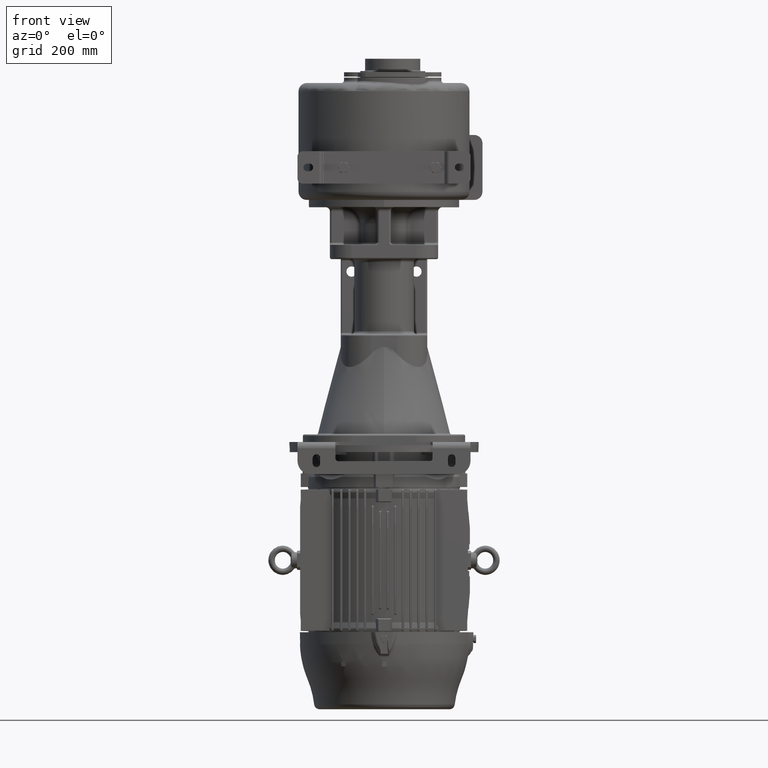
[diagram: clean part render]
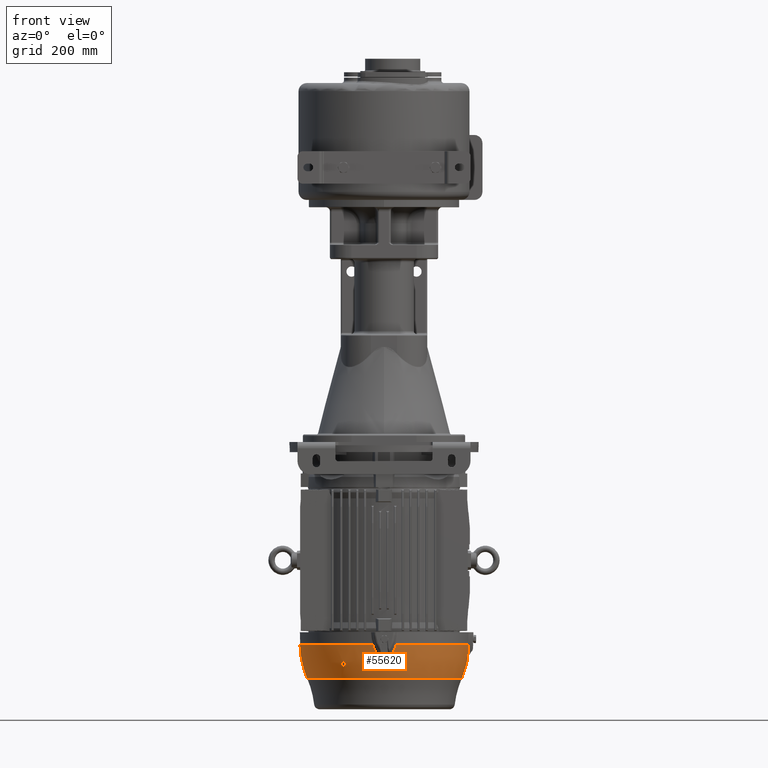
[diagram: same view with one face highlighted and labeled with its STEP entity id]
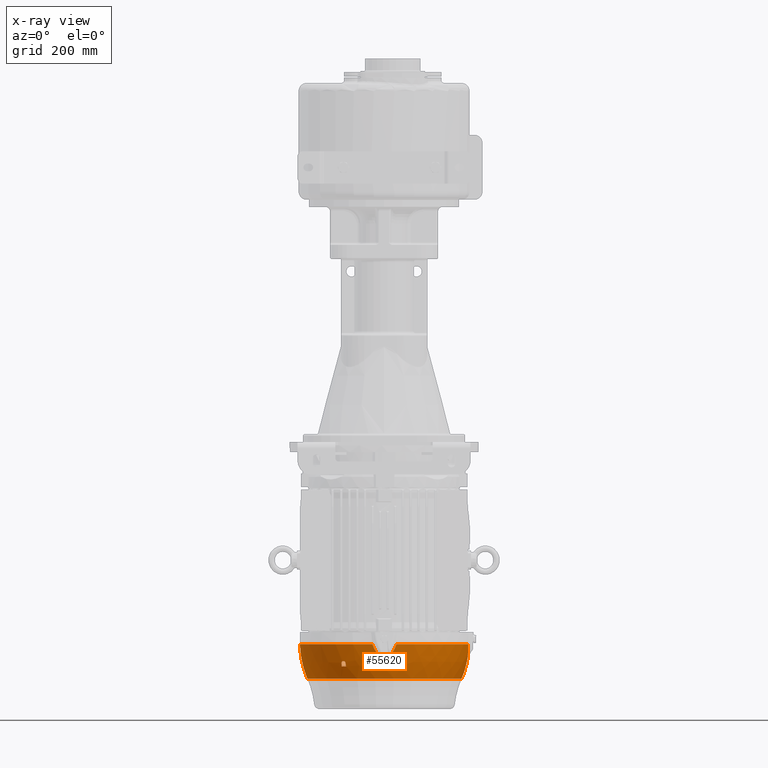
[diagram: x-ray of the same camera — body ghosted, the highlighted face saturated]
A machine part, front view. The second image highlights one B-rep face of the part: STEP entity #55620.
The next image is the same camera in x-ray: the body ghosted, the highlighted face saturated — about 0% of this face is hidden behind the body in this view.
In plain terms, the highlighted face is a freeform B-spline surface patch.
Its self-contained STEP definition (entity closure, byte-faithful):
#5027=CARTESIAN_POINT('',(-2.278002494873E1,1.58E2,-8.760608902496E2));
#5028=DIRECTION('',(0.E0,1.E0,0.E0));
#5029=DIRECTION('',(9.660341785750E-1,0.E0,-2.584143297591E-1));
#5030=AXIS2_PLACEMENT_3D('',#5027,#5028,#5029);
#5050=CARTESIAN_POINT('',(-2.278002494873E1,1.58E2,-8.760608902496E2));
#5051=DIRECTION('',(0.E0,1.E0,0.E0));
#5052=DIRECTION('',(9.877699480425E-1,0.E0,-1.559183431931E-1));
#5053=AXIS2_PLACEMENT_3D('',#5050,#5051,#5052);
#5180=CARTESIAN_POINT('',(8.634161712648E-1,1.58E2,-9.453489229696E2));
#5181=DIRECTION('',(0.E0,0.E0,-1.E0));
#5182=DIRECTION('',(1.E0,0.E0,0.E0));
#5183=AXIS2_PLACEMENT_3D('',#5180,#5181,#5182);
#5190=CARTESIAN_POINT('',(2.450685729126E1,1.58E2,-8.760608902496E2));
#5191=DIRECTION('',(0.E0,-1.E0,0.E0));
#5192=DIRECTION('',(-9.660341785750E-1,0.E0,-2.584143297591E-1));
#5193=AXIS2_PLACEMENT_3D('',#5190,#5191,#5192);
#5195=CARTESIAN_POINT('',(-1.493883468379E2,1.530036341085E2,
-9.222297882218E2));
#5196=CARTESIAN_POINT('',(-1.493874851336E2,1.532404753056E2,
-9.222626953797E2));
#5197=CARTESIAN_POINT('',(-1.493858848299E2,1.537145528284E2,
-9.223238085126E2));
#5198=CARTESIAN_POINT('',(-1.493838529399E2,1.544269444684E2,
-9.224014032616E2));
#5199=CARTESIAN_POINT('',(-1.493821901626E2,1.551403325301E2,
-9.224649021658E2));
#5200=CARTESIAN_POINT('',(-1.493808966422E2,1.558545381858E2,
-9.225142997141E2));
#5201=CARTESIAN_POINT('',(-1.493799725740E2,1.565693482623E2,
-9.225495884574E2));
#5202=CARTESIAN_POINT('',(-1.493794180795E2,1.572845832416E2,
-9.225707637471E2));
#5203=CARTESIAN_POINT('',(-1.493792948522E2,1.577615014652E2,
-9.225754696063E2));
#5204=CARTESIAN_POINT('',(-1.493792948522E2,1.58E2,-9.225754696063E2));
#5206=CARTESIAN_POINT('',(-1.508255728644E2,1.536047050255E2,
-9.165109804543E2));
#5207=CARTESIAN_POINT('',(-1.506764257704E2,1.535376458763E2,
-9.171490056400E2));
#5208=CARTESIAN_POINT('',(-1.503711006155E2,1.534037097429E2,
-9.184233228263E2));
#5209=CARTESIAN_POINT('',(-1.498919880581E2,1.532033373244E2,
-9.203297390430E2));
#5210=CARTESIAN_POINT('',(-1.495585668320E2,1.530701395024E2,
-9.215970316653E2));
#5211=CARTESIAN_POINT('',(-1.493883468379E2,1.530036341085E2,
-9.222297882218E2));
#5213=CARTESIAN_POINT('',(2.450685729126E1,1.58E2,-8.760608902496E2));
#5214=DIRECTION('',(0.E0,-1.E0,0.E0));
#5215=DIRECTION('',(-9.995335908367E-1,0.E0,-3.053851320982E-2));
#5216=AXIS2_PLACEMENT_3D('',#5213,#5214,#5215);
#5218=CARTESIAN_POINT('',(8.634161712648E-1,1.58E2,-8.815578226274E2));
#5219=DIRECTION('',(0.E0,0.E0,-1.E0));
#5220=DIRECTION('',(-1.422718546429E-1,-9.898276210414E-1,0.E0));
#5221=AXIS2_PLACEMENT_3D('',#5218,#5219,#5220);
#5223=CARTESIAN_POINT('',(-8.823866266802E0,4.180401288472E0,
-9.043206801506E2));
#5224=CARTESIAN_POINT('',(-9.460649160347E0,4.089389197458E0,
-9.034974989449E2));
#5225=CARTESIAN_POINT('',(-1.074177086642E1,3.916121498191E0,
-9.017771751398E2));
#5226=CARTESIAN_POINT('',(-1.319501114259E1,3.625262075587E0,
-8.982076194446E2));
#5227=CARTESIAN_POINT('',(-1.714565668305E1,3.270438710904E0,
-8.916735491059E2));
#5228=CARTESIAN_POINT('',(-1.986550244460E1,3.228869103125E0,
-8.857055073583E2));
#5229=CARTESIAN_POINT('',(-2.136977705618E1,3.317058907584E0,
-8.815578225722E2));
#5231=CARTESIAN_POINT('',(1.055069860930E1,4.180401288886E0,-9.043206801505E2));
#5232=CARTESIAN_POINT('',(8.964957968112E0,4.070374655334E0,-9.042569077911E2));
#5233=CARTESIAN_POINT('',(6.559558519117E0,3.944529907133E0,-9.041839681437E2));
#5234=CARTESIAN_POINT('',(3.325288999976E0,3.859261436943E0,-9.041345455199E2));
#5235=CARTESIAN_POINT('',(8.605489552481E-1,3.837620690501E0,
-9.041220024001E2));
#5236=CARTESIAN_POINT('',(-1.603819288343E0,3.859359643010E0,
-9.041346024410E2));
#5237=CARTESIAN_POINT('',(-4.836644592976E0,3.944706073388E0,
-9.041840702511E2));
#5238=CARTESIAN_POINT('',(-7.239940731019E0,4.070500543109E0,
-9.042569807570E2));
#5239=CARTESIAN_POINT('',(-8.823866266802E0,4.180401288472E0,
-9.043206801506E2));
#5241=CARTESIAN_POINT('',(8.634161712648E-1,1.58E2,-8.815578226274E2));
#5242=DIRECTION('',(0.E0,0.E0,-1.E0));
#5243=DIRECTION('',(9.898276210414E-1,-1.422718546429E-1,0.E0));
#5244=AXIS2_PLACEMENT_3D('',#5241,#5242,#5243);
#5246=CARTESIAN_POINT('',(1.546830149958E2,1.483127179889E2,-9.043206796097E2));
#5247=CARTESIAN_POINT('',(1.547740270869E2,1.476759350953E2,-9.034974984040E2));
#5248=CARTESIAN_POINT('',(1.549472946193E2,1.463948127593E2,-9.017771753971E2));
#5249=CARTESIAN_POINT('',(1.552381541270E2,1.439415728044E2,-8.982076192947E2));
#5250=CARTESIAN_POINT('',(1.555929774369E2,1.399909270570E2,-8.916735492183E2));
#5251=CARTESIAN_POINT('',(1.556345470681E2,1.372710813841E2,-8.857055073583E2));
#5252=CARTESIAN_POINT('',(1.555463572637E2,1.357668067726E2,-8.815578225722E2));
#5254=CARTESIAN_POINT('',(1.550185658162E2,1.58E2,-9.041261912805E2));
#5255=CARTESIAN_POINT('',(1.550185659074E2,1.571775467310E2,-9.041261912276E2));
#5256=CARTESIAN_POINT('',(1.550040809608E2,1.555336954460E2,-9.041345890883E2));
#5257=CARTESIAN_POINT('',(1.549187101666E2,1.522999401740E2,-9.041840700375E2));
#5258=CARTESIAN_POINT('',(1.547929156788E2,1.498966429230E2,-9.042569802522E2));
#5259=CARTESIAN_POINT('',(1.546830149958E2,1.483127179889E2,-9.043206796097E2));
#5261=CARTESIAN_POINT('',(1.511151791804E2,1.530036341085E2,-9.222297882218E2));
#5262=CARTESIAN_POINT('',(1.512853991745E2,1.530701395024E2,-9.215970316653E2));
#5263=CARTESIAN_POINT('',(1.516188204007E2,1.532033373244E2,-9.203297390430E2));
#5264=CARTESIAN_POINT('',(1.520979329580E2,1.534037097429E2,-9.184233228263E2));
#5265=CARTESIAN_POINT('',(1.524032581129E2,1.535376458763E2,-9.171490056400E2));
#5266=CARTESIAN_POINT('',(1.525524052069E2,1.536047050255E2,-9.165109804543E2));
#5268=CARTESIAN_POINT('',(1.511061271948E2,1.58E2,-9.225754696063E2));
#5269=CARTESIAN_POINT('',(1.511061271948E2,1.577615014652E2,-9.225754696063E2));
#5270=CARTESIAN_POINT('',(1.511062504220E2,1.572845832416E2,-9.225707637471E2));
#5271=CARTESIAN_POINT('',(1.511068049165E2,1.565693482623E2,-9.225495884574E2));
#5272=CARTESIAN_POINT('',(1.511077289848E2,1.558545381857E2,-9.225142997141E2));
#5273=CARTESIAN_POINT('',(1.511090225051E2,1.551403325301E2,-9.224649021658E2));
#5274=CARTESIAN_POINT('',(1.511106852824E2,1.544269444684E2,-9.224014032616E2));
#5275=CARTESIAN_POINT('',(1.511127171724E2,1.537145528284E2,-9.223238085126E2));
#5276=CARTESIAN_POINT('',(1.511143174761E2,1.532404753056E2,-9.222626953797E2));
#5277=CARTESIAN_POINT('',(1.511151791804E2,1.530036341085E2,-9.222297882218E2));
#5279=CARTESIAN_POINT('',(-7.858944534336E1,3.037634128522E1,
-9.222297999093E2));
#5280=CARTESIAN_POINT('',(-7.861696001258E1,3.019567369575E1,
-9.215970433696E2));
#5281=CARTESIAN_POINT('',(-7.866831755528E1,2.984032057686E1,
-9.203297335812E2));
#5282=CARTESIAN_POINT('',(-7.873434638179E1,2.932521193088E1,
-9.184233243869E2));
#5283=CARTESIAN_POINT('',(-7.877101683139E1,2.899382425492E1,
-9.171490056400E2));
#5284=CARTESIAN_POINT('',(-7.878751545159E1,2.883112950802E1,
-9.165109804543E2));
#5286=CARTESIAN_POINT('',(-6.993548424465E1,2.537997390078E1,
-9.222297962088E2));
#5287=CARTESIAN_POINT('',(-7.015591178888E1,2.550830936848E1,
-9.222652352184E2));
#5288=CARTESIAN_POINT('',(-7.059723187782E1,2.576508194508E1,
-9.223306484384E2));
#5289=CARTESIAN_POINT('',(-7.126069207443E1,2.615060543344E1,
-9.224124665816E2));
#5290=CARTESIAN_POINT('',(-7.192533648938E1,2.653631727612E1,
-9.224779290463E2));
#5291=CARTESIAN_POINT('',(-7.259096778357E1,2.692210459543E1,
-9.225270368165E2));
#5292=CARTESIAN_POINT('',(-7.325736136442E1,2.730783712459E1,
-9.225597791986E2));
#5293=CARTESIAN_POINT('',(-7.392429931719E1,2.769338899060E1,
-9.225761517942E2));
#5294=CARTESIAN_POINT('',(-7.459156145870E1,2.807863296814E1,
-9.225761517977E2));
#5295=CARTESIAN_POINT('',(-7.525892813912E1,2.846344223932E1,
-9.225597791912E2));
#5296=CARTESIAN_POINT('',(-7.592617908976E1,2.884768974646E1,
-9.225270368528E2));
#5297=CARTESIAN_POINT('',(-7.659309632846E1,2.923124965546E1,
-9.224779289302E2));
#5298=CARTESIAN_POINT('',(-7.725945480393E1,2.961399278677E1,
-9.224124670494E2));
#5299=CARTESIAN_POINT('',(-7.792505787067E1,2.999580397030E1,
-9.223306467498E2));
#5300=CARTESIAN_POINT('',(-7.836808980956E1,3.024961317381E1,
-9.222652389162E2));
#5301=CARTESIAN_POINT('',(-7.858944534336E1,3.037634128522E1,
-9.222297999093E2));
#5303=CARTESIAN_POINT('',(-7.117464124151E1,2.443583453353E1,
-9.165109804543E2));
#5304=CARTESIAN_POINT('',(-7.104199276773E1,2.453147013120E1,
-9.171490056400E2));
#5305=CARTESIAN_POINT('',(-7.077333792570E1,2.472892147684E1,
-9.184233238927E2));
#5306=CARTESIAN_POINT('',(-7.036025481010E1,2.504365859058E1,
-9.203297353105E2));
#5307=CARTESIAN_POINT('',(-7.007818962273E1,2.526581172097E1,
-9.215970396638E2));
#5308=CARTESIAN_POINT('',(-6.993548424465E1,2.537997390078E1,
-9.222297962088E2));
#5310=CARTESIAN_POINT('',(-4.132949720262E0,7.748236990866E0,
-9.222297882217E2));
#5311=CARTESIAN_POINT('',(-4.066444326289E0,7.578016996734E0,
-9.215970316653E2));
#5312=CARTESIAN_POINT('',(-3.933246504366E0,7.244595770587E0,
-9.203297390430E2));
#5313=CARTESIAN_POINT('',(-3.732874085804E0,6.765483213254E0,
-9.184233228263E2));
#5314=CARTESIAN_POINT('',(-3.598937952460E0,6.460158058356E0,
-9.171490056400E2));
#5315=CARTESIAN_POINT('',(-3.531878803231E0,6.311010964380E0,
-9.165109804543E2));
#5317=CARTESIAN_POINT('',(5.859782062791E0,7.748236990866E0,-9.222297882217E2));
#5318=CARTESIAN_POINT('',(5.604718358058E0,7.749164994452E0,-9.222652272489E2));
#5319=CARTESIAN_POINT('',(5.094139291541E0,7.750878204736E0,-9.223306521101E2));
#5320=CARTESIAN_POINT('',(4.326803250541E0,7.753020566474E0,-9.224124656041E2));
#5321=CARTESIAN_POINT('',(3.558348491332E0,7.754734794295E0,-9.224779293235E2));
#5322=CARTESIAN_POINT('',(2.789001157517E0,7.756020717651E0,-9.225270367552E2));
#5323=CARTESIAN_POINT('',(2.019021179615E0,7.756878109290E0,-9.225597792210E2));
#5324=CARTESIAN_POINT('',(1.248660106219E0,7.757306840131E0,-9.225761517912E2));
#5325=CARTESIAN_POINT('',(4.781722362237E-1,7.757306840130E0,
-9.225761517912E2));
#5326=CARTESIAN_POINT('',(-2.921888371711E-1,7.756878109290E0,
-9.225597792209E2));
#5327=CARTESIAN_POINT('',(-1.062168815069E0,7.756020717651E0,
-9.225270367552E2));
#5328=CARTESIAN_POINT('',(-1.831516148877E0,7.754734794294E0,
-9.224779293235E2));
#5329=CARTESIAN_POINT('',(-2.599970908073E0,7.753020566473E0,
-9.224124656041E2));
#5330=CARTESIAN_POINT('',(-3.367306949050E0,7.750878204736E0,
-9.223306521101E2));
#5331=CARTESIAN_POINT('',(-3.877886015543E0,7.749164994452E0,
-9.222652272489E2));
#5332=CARTESIAN_POINT('',(-4.132949720262E0,7.748236990866E0,
-9.222297882217E2));
#5334=CARTESIAN_POINT('',(5.258711145761E0,6.311010964380E0,-9.165109804543E2));
#5335=CARTESIAN_POINT('',(5.325770294990E0,6.460158058356E0,-9.171490056400E2));
#5336=CARTESIAN_POINT('',(5.459706428334E0,6.765483213254E0,-9.184233228263E2));
#5337=CARTESIAN_POINT('',(5.660078846895E0,7.244595770587E0,-9.203297390430E2));
#5338=CARTESIAN_POINT('',(5.793276668818E0,7.578016996734E0,-9.215970316653E2));
#5339=CARTESIAN_POINT('',(5.859782062791E0,7.748236990866E0,-9.222297882217E2));
#5349=CARTESIAN_POINT('',(-1.508255728644E2,1.536047050255E2,
-9.165109804543E2));
#5350=CARTESIAN_POINT('',(-1.508380031562E2,1.536102939027E2,
-9.164578058394E2));
#5351=CARTESIAN_POINT('',(-1.508628235497E2,1.536235033434E2,
-9.163516620752E2));
#5352=CARTESIAN_POINT('',(-1.508998856473E2,1.536493923026E2,
-9.161932668193E2));
#5353=CARTESIAN_POINT('',(-1.509367156725E2,1.536813163744E2,
-9.160359624647E2));
#5354=CARTESIAN_POINT('',(-1.509732472508E2,1.537192168781E2,
-9.158800309387E2));
#5355=CARTESIAN_POINT('',(-1.510094153359E2,1.537630188186E2,
-9.157257479809E2));
#5356=CARTESIAN_POINT('',(-1.510451634451E2,1.538126421347E2,
-9.155733523341E2));
#5357=CARTESIAN_POINT('',(-1.510804381722E2,1.538679999363E2,
-9.154230692480E2));
#5358=CARTESIAN_POINT('',(-1.511151858928E2,1.539289940738E2,
-9.152751245446E2));
#5359=CARTESIAN_POINT('',(-1.511493540265E2,1.539955165275E2,
-9.151297392534E2));
#5360=CARTESIAN_POINT('',(-1.511828917556E2,1.540674510696E2,
-9.149871265812E2));
#5361=CARTESIAN_POINT('',(-1.512157499016E2,1.541446736012E2,
-9.148474924682E2));
#5362=CARTESIAN_POINT('',(-1.512478807134E2,1.542270520023E2,
-9.147110365168E2));
#5363=CARTESIAN_POINT('',(-1.512792380930E2,1.543144469223E2,
-9.145779510620E2));
#5364=CARTESIAN_POINT('',(-1.513097776068E2,1.544067121600E2,
-9.144484211529E2));
#5365=CARTESIAN_POINT('',(-1.513394565794E2,1.545036952527E2,
-9.143226241826E2));
#5366=CARTESIAN_POINT('',(-1.513682341092E2,1.546052379651E2,
-9.142007298552E2));
#5367=CARTESIAN_POINT('',(-1.513960705529E2,1.547111745011E2,
-9.140829023924E2));
#5368=CARTESIAN_POINT('',(-1.514229287730E2,1.548213363369E2,
-9.139692952815E2));
#5369=CARTESIAN_POINT('',(-1.514487734412E2,1.549355504902E2,
-9.138600542562E2));
#5370=CARTESIAN_POINT('',(-1.514735710955E2,1.550536400618E2,
-9.137553170834E2));
#5371=CARTESIAN_POINT('',(-1.514972901466E2,1.551754247302E2,
-9.136552135633E2));
#5372=CARTESIAN_POINT('',(-1.515199008511E2,1.553007210620E2,
-9.135598656674E2));
#5373=CARTESIAN_POINT('',(-1.515413753302E2,1.554293430612E2,
-9.134693874851E2));
#5374=CARTESIAN_POINT('',(-1.515616874785E2,1.555611021750E2,
-9.133838856338E2));
#5375=CARTESIAN_POINT('',(-1.515808126974E2,1.556958055613E2,
-9.133034603996E2));
#5376=CARTESIAN_POINT('',(-1.515987286628E2,1.558332617974E2,
-9.132282025276E2));
#5377=CARTESIAN_POINT('',(-1.516154146702E2,1.559732773788E2,
-9.131581960040E2));
#5378=CARTESIAN_POINT('',(-1.516308517623E2,1.561156579825E2,
-9.130935175350E2));
#5379=CARTESIAN_POINT('',(-1.516450226388E2,1.562602083360E2,
-9.130342369449E2));
#5380=CARTESIAN_POINT('',(-1.516579116454E2,1.564067326317E2,
-9.129804172386E2));
#5381=CARTESIAN_POINT('',(-1.516695047182E2,1.565550345610E2,
-9.129321148484E2));
#5382=CARTESIAN_POINT('',(-1.516797892865E2,1.567049165603E2,
-9.128893800557E2));
#5383=CARTESIAN_POINT('',(-1.516887542451E2,1.568561790266E2,
-9.128522571094E2));
#5384=CARTESIAN_POINT('',(-1.516963902034E2,1.570086249520E2,
-9.128207832086E2));
#5385=CARTESIAN_POINT('',(-1.517026892049E2,1.571620569725E2,
-9.127949896799E2));
#5386=CARTESIAN_POINT('',(-1.517076447347E2,1.573162775375E2,
-9.127749019542E2));
#5387=CARTESIAN_POINT('',(-1.517112516943E2,1.574710896126E2,
-9.127605396811E2));
#5388=CARTESIAN_POINT('',(-1.517135063834E2,1.576262942500E2,
-9.127519167958E2));
#5389=CARTESIAN_POINT('',(-1.517141064574E2,1.577298981453E2,-9.1275E2));
#5390=CARTESIAN_POINT('',(-1.517141805695E2,1.577816969861E2,-9.1275E2));
#5421=CARTESIAN_POINT('',(8.634161712648E-1,1.58E2,-9.1275E2));
#5422=DIRECTION('',(0.E0,0.E0,-1.E0));
#5423=DIRECTION('',(-9.999989764542E-1,-1.430765690190E-3,0.E0));
#5424=AXIS2_PLACEMENT_3D('',#5421,#5422,#5423);
#6631=CARTESIAN_POINT('',(1.055069860930E1,4.180401288886E0,-9.043206801505E2));
#6632=CARTESIAN_POINT('',(1.084342032543E1,4.138709640999E0,-9.039432016689E2));
#6633=CARTESIAN_POINT('',(1.142322337926E1,4.058080165985E0,-9.031820265951E2));
#6634=CARTESIAN_POINT('',(1.227724424408E1,3.945294614191E0,-9.020197081302E2));
#6635=CARTESIAN_POINT('',(1.311119200350E1,3.841236740655E0,-9.008425125336E2));
#6636=CARTESIAN_POINT('',(1.392575795926E1,3.745776350713E0,-8.996494824495E2));
#6637=CARTESIAN_POINT('',(1.472053108808E1,3.658944011906E0,-8.984410885649E2));
#6638=CARTESIAN_POINT('',(1.549482438501E1,3.580782721255E0,-8.972183095368E2));
#6639=CARTESIAN_POINT('',(1.624856201778E1,3.511270400181E0,-8.959812168782E2));
#6640=CARTESIAN_POINT('',(1.698134807585E1,3.450415686007E0,-8.947303890821E2));
#6641=CARTESIAN_POINT('',(1.769297072057E1,3.398207898946E0,-8.934661274752E2));
#6642=CARTESIAN_POINT('',(1.838314471740E1,3.354642948157E0,-8.921888721492E2));
#6643=CARTESIAN_POINT('',(1.905151389678E1,3.319716140103E0,-8.908992175637E2));
#6644=CARTESIAN_POINT('',(1.969775013494E1,3.293415875785E0,-8.895977650893E2));
#6645=CARTESIAN_POINT('',(2.032164268997E1,3.275721452404E0,-8.882849130820E2));
#6646=CARTESIAN_POINT('',(2.092303973482E1,3.266610703982E0,-8.869609422182E2));
#6647=CARTESIAN_POINT('',(2.150185462304E1,3.266064150420E0,-8.856259666704E2));
#6648=CARTESIAN_POINT('',(2.205792182710E1,3.274068023354E0,-8.842802582639E2));
#6649=CARTESIAN_POINT('',(2.259093360603E1,3.290604785298E0,-8.829244172069E2));
#6650=CARTESIAN_POINT('',(2.293065795707E1,3.307299088421E0,-8.820143993035E2));
#6651=CARTESIAN_POINT('',(2.309660939871E1,3.317058907584E0,-8.815578225722E2));
#7831=CARTESIAN_POINT('',(8.634161712648E-1,1.58E2,-9.1275E2));
#7832=DIRECTION('',(0.E0,0.E0,-1.E0));
#7833=DIRECTION('',(1.E0,-4.876729003355E-13,0.E0));
#7834=AXIS2_PLACEMENT_3D('',#7831,#7832,#7833);
#7928=CARTESIAN_POINT('',(1.534410129120E2,1.577816969861E2,-9.1275E2));
#7929=CARTESIAN_POINT('',(1.534409387999E2,1.577298981345E2,-9.1275E2));
#7930=CARTESIAN_POINT('',(1.534403387256E2,1.576262941732E2,-9.127519167964E2));
#7931=CARTESIAN_POINT('',(1.534380840314E2,1.574710892769E2,-9.127605397020E2));
#7932=CARTESIAN_POINT('',(1.534344770597E2,1.573162768685E2,-9.127749020247E2));
#7933=CARTESIAN_POINT('',(1.534295215139E2,1.571620560398E2,-9.127949898168E2));
#7934=CARTESIAN_POINT('',(1.534232224989E2,1.570086239123E2,-9.128207834017E2));
#7935=CARTESIAN_POINT('',(1.534155865265E2,1.568561779113E2,-9.128522573620E2));
#7936=CARTESIAN_POINT('',(1.534066215693E2,1.567049156350E2,-9.128893803033E2));
#7937=CARTESIAN_POINT('',(1.533963370033E2,1.565550337880E2,-9.129321150876E2));
#7938=CARTESIAN_POINT('',(1.533847439515E2,1.564067322075E2,-9.129804173906E2));
#7939=CARTESIAN_POINT('',(1.533718549664E2,1.562602081791E2,-9.130342370075E2));
#7940=CARTESIAN_POINT('',(1.533576840861E2,1.561156577974E2,-9.130935176132E2));
#7941=CARTESIAN_POINT('',(1.533422469744E2,1.559732770356E2,-9.131581961645E2));
#7942=CARTESIAN_POINT('',(1.533255609370E2,1.558332612446E2,-9.132282028142E2));
#7943=CARTESIAN_POINT('',(1.533076449459E2,1.556958048643E2,-9.133034607948E2));
#7944=CARTESIAN_POINT('',(1.532885196817E2,1.555611012265E2,-9.133838862200E2));
#7945=CARTESIAN_POINT('',(1.532682075144E2,1.554293420814E2,-9.134693881518E2));
#7946=CARTESIAN_POINT('',(1.532467331022E2,1.553007205462E2,-9.135598660528E2));
#7947=CARTESIAN_POINT('',(1.532241224439E2,1.551754244948E2,-9.136552137542E2));
#7948=CARTESIAN_POINT('',(1.532004034365E2,1.550536400582E2,-9.137553170902E2));
#7949=CARTESIAN_POINT('',(1.531756057980E2,1.549355505551E2,-9.138600541960E2));
#7950=CARTESIAN_POINT('',(1.531497611144E2,1.548213363299E2,-9.139692952860E2));
#7951=CARTESIAN_POINT('',(1.531229028558E2,1.547111743376E2,-9.140829025600E2));
#7952=CARTESIAN_POINT('',(1.530950663246E2,1.546052374930E2,-9.142007303936E2));
#7953=CARTESIAN_POINT('',(1.530662887817E2,1.545036947811E2,-9.143226247768E2));
#7954=CARTESIAN_POINT('',(1.530366098852E2,1.544067119642E2,-9.144484214246E2));
#7955=CARTESIAN_POINT('',(1.530060704106E2,1.543144468524E2,-9.145779511679E2));
#7956=CARTESIAN_POINT('',(1.529747130673E2,1.542270520347E2,-9.147110364686E2));
#7957=CARTESIAN_POINT('',(1.529425822715E2,1.541446736694E2,-9.148474923519E2));
#7958=CARTESIAN_POINT('',(1.529097241319E2,1.540674511441E2,-9.149871264378E2));
#7959=CARTESIAN_POINT('',(1.528761863530E2,1.539955164900E2,-9.151297393215E2));
#7960=CARTESIAN_POINT('',(1.528420181777E2,1.539289939693E2,-9.152751247897E2));
#7961=CARTESIAN_POINT('',(1.528072705323E2,1.538679999682E2,-9.154230691732E2));
#7962=CARTESIAN_POINT('',(1.527719958013E2,1.538126421554E2,-9.155733522758E2));
#7963=CARTESIAN_POINT('',(1.527362477344E2,1.537630188936E2,-9.157257477421E2));
#7964=CARTESIAN_POINT('',(1.527000796584E2,1.537192169511E2,-9.158800306611E2));
#7965=CARTESIAN_POINT('',(1.526635480654E2,1.536813164198E2,-9.160359622494E2));
#7966=CARTESIAN_POINT('',(1.526267179909E2,1.536493923030E2,-9.161932668146E2));
#7967=CARTESIAN_POINT('',(1.525896559213E2,1.536235033621E2,-9.163516619511E2));
#7968=CARTESIAN_POINT('',(1.525648355097E2,1.536102939077E2,-9.164578057926E2));
#7969=CARTESIAN_POINT('',(1.525524052069E2,1.536047050255E2,-9.165109804543E2));
#7979=CARTESIAN_POINT('',(8.634161712648E-1,1.58E2,-9.1275E2));
#7980=DIRECTION('',(0.E0,0.E0,-1.E0));
#7981=DIRECTION('',(-4.987604087926E-1,-8.667399002129E-1,0.E0));
#7982=AXIS2_PLACEMENT_3D('',#7979,#7980,#7981);
#7996=CARTESIAN_POINT('',(-7.117464124151E1,2.443583453353E1,
-9.165109804543E2));
#7997=CARTESIAN_POINT('',(-7.118569649711E1,2.442786402360E1,
-9.164578058394E2));
#7998=CARTESIAN_POINT('',(-7.120954640500E1,2.441297365262E1,
-9.163516620752E2));
#7999=CARTESIAN_POINT('',(-7.125049795018E1,2.439382141423E1,
-9.161932668193E2));
#8000=CARTESIAN_POINT('',(-7.129656001991E1,2.437788771271E1,
-9.160359624647E2));
#8001=CARTESIAN_POINT('',(-7.134764860815E1,2.436520068970E1,
-9.158800309387E2));
#8002=CARTESIAN_POINT('',(-7.140366624388E1,2.435577917949E1,
-9.157257479809E2));
#8003=CARTESIAN_POINT('',(-7.146451535082E1,2.434963206679E1,
-9.155733523341E2));
#8004=CARTESIAN_POINT('',(-7.153009397684E1,2.434676215776E1,
-9.154230692480E2));
#8005=CARTESIAN_POINT('',(-7.160029030969E1,2.434716681779E1,
-9.152751245446E2));
#8006=CARTESIAN_POINT('',(-7.167498451139E1,2.435083757282E1,
-9.151297392534E2));
#8007=CARTESIAN_POINT('',(-7.175405051679E1,2.435776031849E1,
-9.149871265812E2));
#8008=CARTESIAN_POINT('',(-7.183735626389E1,2.436791559518E1,
-9.148474924682E2));
#8009=CARTESIAN_POINT('',(-7.192476345792E1,2.438127869648E1,
-9.147110365168E2));
#8010=CARTESIAN_POINT('',(-7.201612836855E1,2.439781986907E1,
-9.145779510620E2));
#8011=CARTESIAN_POINT('',(-7.211130216518E1,2.441750449319E1,
-9.144484211529E2));
#8012=CARTESIAN_POINT('',(-7.221013147357E1,2.444029329528E1,
-9.143226241826E2));
#8013=CARTESIAN_POINT('',(-7.231245880692E1,2.446614257962E1,
-9.142007298552E2));
#8014=CARTESIAN_POINT('',(-7.241812076015E1,2.449500378022E1,
-9.140829023924E2));
#8015=CARTESIAN_POINT('',(-7.252695281852E1,2.452682479727E1,
-9.139692952815E2));
#8016=CARTESIAN_POINT('',(-7.263878751088E1,2.456154973471E1,
-9.138600542562E2));
#8017=CARTESIAN_POINT('',(-7.275345490692E1,2.459911912184E1,
-9.137553170834E2));
#8018=CARTESIAN_POINT('',(-7.287078304914E1,2.463947015529E1,
-9.136552135633E2));
#8019=CARTESIAN_POINT('',(-7.299059820768E1,2.468253687673E1,
-9.135598656674E2));
#8020=CARTESIAN_POINT('',(-7.311272536603E1,2.472825043186E1,
-9.134693874851E2));
#8021=CARTESIAN_POINT('',(-7.323698817993E1,2.477653915229E1,
-9.133838856338E2));
#8022=CARTESIAN_POINT('',(-7.336320734384E1,2.482732792007E1,
-9.133034603996E2));
#8023=CARTESIAN_POINT('',(-7.349120591896E1,2.488054035694E1,
-9.132282025276E2));
#8024=CARTESIAN_POINT('',(-7.362080597308E1,2.493609764135E1,
-9.131581960040E2));
#8025=CARTESIAN_POINT('',(-7.375182973899E1,2.499391902929E1,
-9.130935175350E2));
#8026=CARTESIAN_POINT('',(-7.388409945545E1,2.505392186695E1,
-9.130342369449E2));
#8027=CARTESIAN_POINT('',(-7.401743772105E1,2.511602180771E1,
-9.129804172386E2));
#8028=CARTESIAN_POINT('',(-7.415166749574E1,2.518013287679E1,
-9.129321148484E2));
#8029=CARTESIAN_POINT('',(-7.428661139877E1,2.524616717902E1,
-9.128893800557E2));
#8030=CARTESIAN_POINT('',(-7.442209101658E1,2.531403453027E1,
-9.128522571094E2));
#8031=CARTESIAN_POINT('',(-7.455793103984E1,2.538364455912E1,
-9.128207832086E2));
#8032=CARTESIAN_POINT('',(-7.469395656810E1,2.545490547401E1,
-9.127949896799E2));
#8033=CARTESIAN_POINT('',(-7.482999326009E1,2.552772414183E1,
-9.127749019542E2));
#8034=CARTESIAN_POINT('',(-7.496586792969E1,2.560200646074E1,
-9.127605396811E2));
#8035=CARTESIAN_POINT('',(-7.510140643297E1,2.567765616142E1,
-9.127519167958E2));
#8036=CARTESIAN_POINT('',(-7.519143007531E1,2.572893842976E1,-9.1275E2));
#8037=CARTESIAN_POINT('',(-7.523632624330E1,2.575477366718E1,-9.1275E2));
#8075=CARTESIAN_POINT('',(-7.561443815490E1,2.597307668113E1,-9.1275E2));
#8076=CARTESIAN_POINT('',(-7.565926022018E1,2.599904028986E1,-9.1275E2));
#8077=CARTESIAN_POINT('',(-7.574868384548E1,2.605136195006E1,
-9.127519167964E2));
#8078=CARTESIAN_POINT('',(-7.588196788131E1,2.613091702066E1,
-9.127605397020E2));
#8079=CARTESIAN_POINT('',(-7.601423587397E1,2.621144695402E1,
-9.127749020247E2));
#8080=CARTESIAN_POINT('',(-7.614531725647E1,2.629284899693E1,
-9.127949898168E2));
#8081=CARTESIAN_POINT('',(-7.627504386920E1,2.637502016766E1,
-9.128207834017E2));
#8082=CARTESIAN_POINT('',(-7.640324799256E1,2.645785611426E1,
-9.128522573620E2));
#8083=CARTESIAN_POINT('',(-7.652976248792E1,2.654125113308E1,
-9.128893803033E2));
#8084=CARTESIAN_POINT('',(-7.665442169199E1,2.662509875204E1,
-9.129321150876E2));
#8085=CARTESIAN_POINT('',(-7.677705810213E1,2.670928941964E1,
-9.129804173906E2));
#8086=CARTESIAN_POINT('',(-7.689750714051E1,2.679371362239E1,
-9.130342370075E2));
#8087=CARTESIAN_POINT('',(-7.701560600309E1,2.687826115553E1,
-9.130935176132E2));
#8088=CARTESIAN_POINT('',(-7.713119280390E1,2.696282046728E1,
-9.131581961645E2));
#8089=CARTESIAN_POINT('',(-7.724410701714E1,2.704727889507E1,
-9.132282028142E2));
#8090=CARTESIAN_POINT('',(-7.735418973884E1,2.713152278873E1,
-9.133034607948E2));
#8091=CARTESIAN_POINT('',(-7.746128387910E1,2.721543757223E1,
-9.133838862200E2));
#8092=CARTESIAN_POINT('',(-7.756523456222E1,2.729890799763E1,
-9.134693881518E2));
#8093=CARTESIAN_POINT('',(-7.766588687306E1,2.738181615178E1,
-9.135598660528E2));
#8094=CARTESIAN_POINT('',(-7.776309110747E1,2.746404558196E1,
-9.136552137542E2));
#8095=CARTESIAN_POINT('',(-7.785670001963E1,2.754547906324E1,
-9.137553170902E2));
#8096=CARTESIAN_POINT('',(-7.794656970994E1,2.762599919968E1,
-9.138600541960E2));
#8097=CARTESIAN_POINT('',(-7.803255978871E1,2.770548846481E1,
-9.139692952860E2));
#8098=CARTESIAN_POINT('',(-7.811453374329E1,2.778382939522E1,
-9.140829025600E2));
#8099=CARTESIAN_POINT('',(-7.819235947623E1,2.786090496069E1,
-9.142007303936E2));
#8100=CARTESIAN_POINT('',(-7.826590927295E1,2.793659839983E1,
-9.143226247768E2));
#8101=CARTESIAN_POINT('',(-7.833505940785E1,2.801079248661E1,
-9.144484214246E2));
#8102=CARTESIAN_POINT('',(-7.839969360124E1,2.808337300339E1,
-9.145779511679E2));
#8103=CARTESIAN_POINT('',(-7.845970106180E1,2.815422666811E1,
-9.147110364686E2));
#8104=CARTESIAN_POINT('',(-7.851497742101E1,2.822324193617E1,
-9.148474923519E2));
#8105=CARTESIAN_POINT('',(-7.856542501990E1,2.829030918245E1,
-9.149871264378E2));
#8106=CARTESIAN_POINT('',(-7.861095336832E1,2.835532107797E1,
-9.151297393215E2));
#8107=CARTESIAN_POINT('',(-7.865147947347E1,2.841817284609E1,
-9.152751247897E2));
#8108=CARTESIAN_POINT('',(-7.868692800527E1,2.847876219033E1,
-9.154230691732E2));
#8109=CARTESIAN_POINT('',(-7.871723191189E1,2.853698990987E1,
-9.155733522758E2));
#8110=CARTESIAN_POINT('',(-7.874233288383E1,2.859276027488E1,
-9.157257477421E2));
#8111=CARTESIAN_POINT('',(-7.876218244075E1,2.864598371874E1,
-9.158800306611E2));
#8112=CARTESIAN_POINT('',(-7.877673946716E1,2.869657127195E1,
-9.160359622494E2));
#8113=CARTESIAN_POINT('',(-7.878597152608E1,2.874442911047E1,
-9.161932668146E2));
#8114=CARTESIAN_POINT('',(-7.878986097176E1,2.878947027476E1,
-9.163516619511E2));
#8115=CARTESIAN_POINT('',(-7.878889048907E1,2.881757010894E1,
-9.164578057926E2));
#8116=CARTESIAN_POINT('',(-7.878751545159E1,2.883112950802E1,
-9.165109804543E2));
#8126=CARTESIAN_POINT('',(5.258711145761E0,6.311010964380E0,-9.165109804543E2));
#8127=CARTESIAN_POINT('',(5.253122268528E0,6.298580672503E0,-9.164578058394E2));
#8128=CARTESIAN_POINT('',(5.239912827902E0,6.273760279015E0,-9.163516620752E2));
#8129=CARTESIAN_POINT('',(5.214023868652E0,6.236698181438E0,-9.161932668193E2));
#8130=CARTESIAN_POINT('',(5.182099796869E0,6.199868156285E0,-9.160359624647E2));
#8131=CARTESIAN_POINT('',(5.144199293117E0,6.163336577936E0,-9.158800309387E2));
#8132=CARTESIAN_POINT('',(5.100397352619E0,6.127168492884E0,-9.157257479809E2));
#8133=CARTESIAN_POINT('',(5.050774036565E0,6.091420383662E0,-9.155733523341E2));
#8134=CARTESIAN_POINT('',(4.995416234997E0,6.056145656528E0,-9.154230692480E2));
#8135=CARTESIAN_POINT('',(4.934422097484E0,6.021397935962E0,-9.152751245446E2));
#8136=CARTESIAN_POINT('',(4.867899643788E0,5.987229802221E0,-9.151297392534E2));
#8137=CARTESIAN_POINT('',(4.795965101698E0,5.953692073133E0,-9.149871265812E2));
#8138=CARTESIAN_POINT('',(4.718742570079E0,5.920833927184E0,-9.148474924682E2));
#8139=CARTESIAN_POINT('',(4.636364168921E0,5.888703115369E0,-9.147110365168E2));
#8140=CARTESIAN_POINT('',(4.548969249006E0,5.857345735724E0,-9.145779510620E2));
#8141=CARTESIAN_POINT('',(4.456704011296E0,5.826806221960E0,-9.144484211529E2));
#8142=CARTESIAN_POINT('',(4.359720918550E0,5.797127249298E0,-9.143226241826E2));
#8143=CARTESIAN_POINT('',(4.258178206192E0,5.768349719528E0,-9.142007298552E2));
#8144=CARTESIAN_POINT('',(4.152241670178E0,5.740513275819E0,-9.140829023924E2));
#8145=CARTESIAN_POINT('',(4.042079834362E0,5.713655055767E0,-9.139692952815E2));
#8146=CARTESIAN_POINT('',(3.927865681034E0,5.687810387557E0,-9.138600542562E2));
#8147=CARTESIAN_POINT('',(3.809776109510E0,5.663012733200E0,-9.137553170834E2));
#8148=CARTESIAN_POINT('',(3.687991441050E0,5.639293682123E0,-9.136552135633E2));
#8149=CARTESIAN_POINT('',(3.562695109268E0,5.616682977681E0,-9.135598656674E2));
#8150=CARTESIAN_POINT('',(3.434073110079E0,5.595208498547E0,-9.134693874851E2));
#8151=CARTESIAN_POINT('',(3.302313996292E0,5.574896350203E0,-9.133838856338E2));
#8152=CARTESIAN_POINT('',(3.167610610005E0,5.555771131370E0,-9.133034603996E2));
#8153=CARTESIAN_POINT('',(3.030154373869E0,5.537855165944E0,-9.132282025276E2));
#8154=CARTESIAN_POINT('',(2.890138792467E0,5.521169158548E0,-9.131581960040E2));
#8155=CARTESIAN_POINT('',(2.747758188714E0,5.505732066424E0,-9.130935175350E2));
#8156=CARTESIAN_POINT('',(2.603207835281E0,5.491561189916E0,-9.130342369449E2));
#8157=CARTESIAN_POINT('',(2.456683539591E0,5.478672183381E0,-9.129804172386E2));
#8158=CARTESIAN_POINT('',(2.308381610231E0,5.467079110521E0,-9.129321148484E2));
#8159=CARTESIAN_POINT('',(2.158499611009E0,5.456794542262E0,-9.128893800557E2));
#8160=CARTESIAN_POINT('',(2.007237144659E0,5.447829583622E0,-9.128522571094E2));
#8161=CARTESIAN_POINT('',(1.854791219237E0,5.440193625341E0,-9.128207832086E2));
#8162=CARTESIAN_POINT('',(1.701359198764E0,5.433894623800E0,-9.127949896799E2));
#8163=CARTESIAN_POINT('',(1.547138633744E0,5.428939094006E0,-9.127749019542E2));
#8164=CARTESIAN_POINT('',(1.392326558678E0,5.425332134430E0,-9.127605396811E2));
#8165=CARTESIAN_POINT('',(1.237121921306E0,5.423077445375E0,-9.127519167958E2));
#8166=CARTESIAN_POINT('',(1.133518025935E0,5.422477371353E0,-9.1275E2));
#8167=CARTESIAN_POINT('',(1.081719185214E0,5.422403259273E0,-9.1275E2));
#8193=CARTESIAN_POINT('',(8.634161712648E-1,1.58E2,-9.1275E2));
#8194=DIRECTION('',(0.E0,0.E0,-1.E0));
#8195=DIRECTION('',(1.430765690175E-3,-9.999989764542E-1,0.E0));
#8196=AXIS2_PLACEMENT_3D('',#8193,#8194,#8195);
#8214=CARTESIAN_POINT('',(6.451131573161E-1,5.422403259273E0,-9.1275E2));
#8215=CARTESIAN_POINT('',(5.933143057683E-1,5.422477371369E0,-9.1275E2));
#8216=CARTESIAN_POINT('',(4.897103444671E-1,5.423077445621E0,
-9.127519167964E2));
#8217=CARTESIAN_POINT('',(3.345054482103E-1,5.425332139848E0,
-9.127605397020E2));
#8218=CARTESIAN_POINT('',(1.796930397858E-1,5.428939111572E0,
-9.127749020247E2));
#8219=CARTESIAN_POINT('',(2.547221111284E-2,5.433894657403E0,
-9.127949898168E2));
#8220=CARTESIAN_POINT('',(-1.279599164154E-1,5.440193672346E0,
-9.128207834017E2));
#8221=CARTESIAN_POINT('',(-2.804059174179E-1,5.447829644767E0,
-9.128522573620E2));
#8222=CARTESIAN_POINT('',(-4.316681937586E-1,5.456794601935E0,
-9.128893803033E2));
#8223=CARTESIAN_POINT('',(-5.815500407780E-1,5.467079167969E0,
-9.129321150876E2));
#8224=CARTESIAN_POINT('',(-7.298516211882E-1,5.478672219803E0,
-9.129804173906E2));
#8225=CARTESIAN_POINT('',(-8.763756496636E-1,5.491561204885E0,
-9.130342370075E2));
#8226=CARTESIAN_POINT('',(-1.020926031383E0,5.505732085124E0,
-9.130935176132E2));
#8227=CARTESIAN_POINT('',(-1.163306793097E0,5.521169196824E0,
-9.131581961645E2));
#8228=CARTESIAN_POINT('',(-1.303322584108E0,5.537855234227E0,
-9.132282028142E2));
#8229=CARTESIAN_POINT('',(-1.440778964455E0,5.555771225406E0,
-9.133034607948E2));
#8230=CARTESIAN_POINT('',(-1.575482602260E0,5.574896489542E0,
-9.133838862200E2));
#8231=CARTESIAN_POINT('',(-1.707241747285E0,5.595208656838E0,
-9.134693881518E2));
#8232=CARTESIAN_POINT('',(-1.835863282497E0,5.616683069089E0,
-9.135598660528E2));
#8233=CARTESIAN_POINT('',(-1.961159333939E0,5.639293727360E0,
-9.136552137542E2));
#8234=CARTESIAN_POINT('',(-2.082943770528E0,5.663012734792E0,
-9.137553170902E2));
#8235=CARTESIAN_POINT('',(-2.201033273589E0,5.687810373311E0,
-9.138600541960E2));
#8236=CARTESIAN_POINT('',(-2.315247498842E0,5.713655056856E0,
-9.139692952860E2));
#8237=CARTESIAN_POINT('',(-2.425409491167E0,5.740513315454E0,
-9.140829025600E2));
#8238=CARTESIAN_POINT('',(-2.531346335690E0,5.768349846692E0,
-9.142007303936E2));
#8239=CARTESIAN_POINT('',(-2.632889047669E0,5.797127389526E0,
-9.143226247768E2));
#8240=CARTESIAN_POINT('',(-2.729871864552E0,5.826806286038E0,
-9.144484214246E2));
#8241=CARTESIAN_POINT('',(-2.822136976368E0,5.857345760695E0,
-9.145779511679E2));
#8242=CARTESIAN_POINT('',(-2.909531793995E0,5.888703104014E0,
-9.147110364686E2));
#8243=CARTESIAN_POINT('',(-2.991910159334E0,5.920833899801E0,
-9.148474923519E2));
#8244=CARTESIAN_POINT('',(-3.069132684670E0,5.953692039389E0,
-9.149871264378E2));
#8245=CARTESIAN_POINT('',(-3.141067338753E0,5.987229818256E0,
-9.151297393215E2));
#8246=CARTESIAN_POINT('',(-3.207589859387E0,6.021397993544E0,
-9.152751247897E2));
#8247=CARTESIAN_POINT('',(-3.268583860574E0,6.056145638955E0,
-9.154230691732E2));
#8248=CARTESIAN_POINT('',(-3.323941673314E0,6.091420369973E0,
-9.155733522758E2));
#8249=CARTESIAN_POINT('',(-3.373564935172E0,6.127168436878E0,
-9.157257477421E2));
#8250=CARTESIAN_POINT('',(-3.417366877650E0,6.163336512877E0,
-9.158800306611E2));
#8251=CARTESIAN_POINT('',(-3.455267408931E0,6.199868105862E0,
-9.160359622494E2));
#8252=CARTESIAN_POINT('',(-3.487191525747E0,6.236698180330E0,
-9.161932668146E2));
#8253=CARTESIAN_POINT('',(-3.513080466650E0,6.273760249985E0,
-9.163516619511E2));
#8254=CARTESIAN_POINT('',(-3.526289921081E0,6.298580661568E0,
-9.164578057926E2));
#8255=CARTESIAN_POINT('',(-3.531878803231E0,6.311010964380E0,
-9.165109804543E2));
#44635=CARTESIAN_POINT('',(-1.517141805695E2,1.577816969861E2,-9.1275E2));
#44637=VERTEX_POINT('',#44635);
#44648=CARTESIAN_POINT('',(-1.508255728644E2,1.536047050255E2,
-9.165109804543E2));
#44650=VERTEX_POINT('',#44648);
#44651=CARTESIAN_POINT('',(-1.493883468379E2,1.530036341085E2,
-9.222297882218E2));
#44652=VERTEX_POINT('',#44651);
#44656=CARTESIAN_POINT('',(-7.858944534336E1,3.037634128522E1,
-9.222297999093E2));
#44658=VERTEX_POINT('',#44656);
#44659=CARTESIAN_POINT('',(-7.878751545159E1,2.883112950802E1,
-9.165109804543E2));
#44660=VERTEX_POINT('',#44659);
#44672=CARTESIAN_POINT('',(-7.117464124151E1,2.443583453353E1,
-9.165109804543E2));
#44674=VERTEX_POINT('',#44672);
#44675=CARTESIAN_POINT('',(-7.561443815490E1,2.597307668113E1,-9.1275E2));
#44677=VERTEX_POINT('',#44675);
#44683=CARTESIAN_POINT('',(-6.993548424465E1,2.537997390078E1,
-9.222297962088E2));
#44684=VERTEX_POINT('',#44683);
#44685=CARTESIAN_POINT('',(-7.523632624330E1,2.575477366718E1,-9.1275E2));
#44686=VERTEX_POINT('',#44685);
#45020=VERTEX_POINT('',#8126);
#45021=VERTEX_POINT('',#8167);
#45023=VERTEX_POINT('',#5310);
#45024=VERTEX_POINT('',#5315);
#45034=VERTEX_POINT('',#5339);
#45047=CARTESIAN_POINT('',(6.451131573159E-1,5.422403259273E0,-9.1275E2));
#45048=VERTEX_POINT('',#45047);
#45074=VERTEX_POINT('',#5204);
#45075=VERTEX_POINT('',#5223);
#45076=VERTEX_POINT('',#5229);
#45077=VERTEX_POINT('',#6631);
#45078=VERTEX_POINT('',#6651);
#45079=CARTESIAN_POINT('',(-1.517143367398E2,1.579999999999E2,-9.1275E2));
#45080=VERTEX_POINT('',#45079);
#45081=VERTEX_POINT('',#5261);
#45082=VERTEX_POINT('',#5266);
#45085=VERTEX_POINT('',#5268);
#45086=VERTEX_POINT('',#5254);
#45087=VERTEX_POINT('',#5259);
#45088=VERTEX_POINT('',#7928);
#45089=VERTEX_POINT('',#5252);
#45090=CARTESIAN_POINT('',(1.534411690823E2,1.579999999999E2,-9.1275E2));
#45091=VERTEX_POINT('',#45090);
#45519=CARTESIAN_POINT('',(1.433499498355E2,1.58E2,-9.453489229696E2));
#45520=CARTESIAN_POINT('',(-1.416231174929E2,1.58E2,-9.453489229696E2));
#45521=VERTEX_POINT('',#45519);
#45522=VERTEX_POINT('',#45520);
#46117=CARTESIAN_POINT('',(-1.554091890593E2,1.58E2,-8.815578226274E2));
#46118=VERTEX_POINT('',#46117);
#55528=CARTESIAN_POINT('',(-1.408333084118E2,1.669148022781E2,
-9.465584651188E2));
#55529=CARTESIAN_POINT('',(-1.497797519340E2,1.674776647954E2,
-9.254989820630E2));
#55530=CARTESIAN_POINT('',(-1.546049716544E2,1.677812418885E2,
-9.031275138929E2));
#55531=CARTESIAN_POINT('',(-1.551360504243E2,1.678146545326E2,
-8.802457672065E2));
#55532=CARTESIAN_POINT('',(-1.463194652289E2,7.971483672799E1,
-9.465584651188E2));
#55533=CARTESIAN_POINT('',(-1.556122935548E2,7.477207045092E1,
-9.254989820630E2));
#55534=CARTESIAN_POINT('',(-1.606243341924E2,7.210621409648E1,
-9.031275138929E2));
#55535=CARTESIAN_POINT('',(-1.611759750566E2,7.181280161053E1,
-8.802457672065E2));
#55536=CARTESIAN_POINT('',(-8.650895880252E1,1.602311646880E1,
-9.465584651188E2));
#55537=CARTESIAN_POINT('',(-9.202547317788E1,7.058984279367E0,
-9.254989820630E2));
#55538=CARTESIAN_POINT('',(-9.500077770930E1,2.224224264505E0,
-9.031275138929E2));
#55539=CARTESIAN_POINT('',(-9.532824902919E1,1.692095459969E0,
-8.802457672065E2));
#55540=CARTESIAN_POINT('',(8.634161712648E-1,1.602311646880E1,
-9.465584651188E2));
#55541=CARTESIAN_POINT('',(8.634161712647E-1,7.058984279366E0,
-9.254989820630E2));
#55542=CARTESIAN_POINT('',(8.634161712647E-1,2.224224264505E0,
-9.031275138929E2));
#55543=CARTESIAN_POINT('',(8.634161712646E-1,1.692095459968E0,
-8.802457672065E2));
#55544=CARTESIAN_POINT('',(8.823579114504E1,1.602311646880E1,
-9.465584651188E2));
#55545=CARTESIAN_POINT('',(9.375230552041E1,7.058984279367E0,
-9.254989820630E2));
#55546=CARTESIAN_POINT('',(9.672761005183E1,2.224224264505E0,
-9.031275138929E2));
#55547=CARTESIAN_POINT('',(9.705508137172E1,1.692095459968E0,
-8.802457672065E2));
#55548=CARTESIAN_POINT('',(1.480462975715E2,7.971483672799E1,
-9.465584651188E2));
#55549=CARTESIAN_POINT('',(1.573391258973E2,7.477207045091E1,
-9.254989820630E2));
#55550=CARTESIAN_POINT('',(1.623511665350E2,7.210621409648E1,
-9.031275138929E2));
#55551=CARTESIAN_POINT('',(1.629028073992E2,7.181280161053E1,
-8.802457672065E2));
#55552=CARTESIAN_POINT('',(1.425601407543E2,1.669148022781E2,
-9.465584651188E2));
#55553=CARTESIAN_POINT('',(1.515065842766E2,1.674776647954E2,
-9.254989820630E2));
#55554=CARTESIAN_POINT('',(1.563318039969E2,1.677812418885E2,
-9.031275138929E2));
#55555=CARTESIAN_POINT('',(1.568628827668E2,1.678146545326E2,
-8.802457672065E2));
#55556=(BOUNDED_SURFACE()B_SPLINE_SURFACE(3,3,((#55528,#55529,#55530,#55531),(
#55532,#55533,#55534,#55535),(#55536,#55537,#55538,#55539),(#55540,#55541,
#55542,#55543),(#55544,#55545,#55546,#55547),(#55548,#55549,#55550,#55551),(
#55552,#55553,#55554,#55555)),.UNSPECIFIED.,.F.,.F.,.F.)B_SPLINE_SURFACE_WITH_KNOTS((4,3,4),(4,4),(0.E0,1.E0,2.E0),(0.E0,1.E0),.UNSPECIFIED.)GEOMETRIC_REPRESENTATION_ITEM()RATIONAL_B_SPLINE_SURFACE(((1.197995610844E0,1.183685106377E0,
1.183685106377E0,1.197995610844E0),(9.460548224940E-1,9.347538447268E-1,
9.347538447268E-1,9.460548224940E-1),(9.460548224940E-1,9.347538447268E-1,
9.347538447268E-1,9.460548224940E-1),(1.197995610844E0,1.183685106377E0,
1.183685106377E0,1.197995610844E0),(9.460548224940E-1,9.347538447268E-1,
9.347538447268E-1,9.460548224940E-1),(9.460548224940E-1,9.347538447268E-1,
9.347538447268E-1,9.460548224940E-1),(1.197995610844E0,1.183685106377E0,
1.183685106377E0,1.197995610844E0)))REPRESENTATION_ITEM('')SURFACE());
#55557=ORIENTED_EDGE('',*,*,#55466,.F.);
#55559=ORIENTED_EDGE('',*,*,#55558,.F.);
#55561=ORIENTED_EDGE('',*,*,#55560,.F.);
#55563=ORIENTED_EDGE('',*,*,#55562,.T.);
#55565=ORIENTED_EDGE('',*,*,#55564,.T.);
#55566=ORIENTED_EDGE('',*,*,#55456,.F.);
#55567=ORIENTED_EDGE('',*,*,#55052,.F.);
#55569=ORIENTED_EDGE('',*,*,#55568,.F.);
#55571=ORIENTED_EDGE('',*,*,#55570,.F.);
#55573=ORIENTED_EDGE('',*,*,#55572,.T.);
#55574=ORIENTED_EDGE('',*,*,#55185,.F.);
#55576=ORIENTED_EDGE('',*,*,#55575,.F.);
#55578=ORIENTED_EDGE('',*,*,#55577,.F.);
#55579=ORIENTED_EDGE('',*,*,#55443,.T.);
#55581=ORIENTED_EDGE('',*,*,#55580,.T.);
#55583=ORIENTED_EDGE('',*,*,#55582,.T.);
#55585=ORIENTED_EDGE('',*,*,#55584,.F.);
#55587=ORIENTED_EDGE('',*,*,#55586,.F.);
#55588=ORIENTED_EDGE('',*,*,#55433,.T.);
#55589=ORIENTED_EDGE('',*,*,#55519,.T.);
#55590=EDGE_LOOP('',(#55557,#55559,#55561,#55563,#55565,#55566,#55567,#55569,
#55571,#55573,#55574,#55576,#55578,#55579,#55581,#55583,#55585,#55587,#55588,
#55589));
#55591=FACE_OUTER_BOUND('',#55590,.F.);
#55593=ORIENTED_EDGE('',*,*,#55592,.F.);
#55595=ORIENTED_EDGE('',*,*,#55594,.F.);
#55597=ORIENTED_EDGE('',*,*,#55596,.F.);
#55599=ORIENTED_EDGE('',*,*,#55598,.T.);
#55601=ORIENTED_EDGE('',*,*,#55600,.T.);
#55603=ORIENTED_EDGE('',*,*,#55602,.T.);
#55604=EDGE_LOOP('',(#55593,#55595,#55597,#55599,#55601,#55603));
#55605=FACE_BOUND('',#55604,.F.);
#55607=ORIENTED_EDGE('',*,*,#55606,.F.);
#55609=ORIENTED_EDGE('',*,*,#55608,.F.);
#55611=ORIENTED_EDGE('',*,*,#55610,.F.);
#55613=ORIENTED_EDGE('',*,*,#55612,.T.);
#55615=ORIENTED_EDGE('',*,*,#55614,.T.);
#55617=ORIENTED_EDGE('',*,*,#55616,.T.);
#55618=EDGE_LOOP('',(#55607,#55609,#55611,#55613,#55615,#55617));
#55619=FACE_BOUND('',#55618,.F.);
#55620=ADVANCED_FACE('',(#55591,#55605,#55619),#55556,.T.);
#5031=CIRCLE('',#5030,1.8E2);
#5054=CIRCLE('',#5053,1.8E2);
#5184=CIRCLE('',#5183,1.424865336642E2);
#5194=CIRCLE('',#5193,1.8E2);
#5205=B_SPLINE_CURVE_WITH_KNOTS('',3,(#5195,#5196,#5197,#5198,#5199,#5200,#5201,
#5202,#5203,#5204),.UNSPECIFIED.,.F.,.F.,(4,1,1,1,1,1,1,4),(0.E0,
1.428571428571E-1,2.857142857143E-1,4.285714285714E-1,5.714285714286E-1,
7.142857142857E-1,8.571428571429E-1,1.E0),.UNSPECIFIED.);
#5212=B_SPLINE_CURVE_WITH_KNOTS('',3,(#5206,#5207,#5208,#5209,#5210,#5211),
.UNSPECIFIED.,.F.,.F.,(4,1,1,4),(0.E0,3.333333333333E-1,6.666666666667E-1,1.E0),
.UNSPECIFIED.);
#5217=CIRCLE('',#5216,1.8E2);
#5222=CIRCLE('',#5221,1.562726052306E2);
#5230=B_SPLINE_CURVE_WITH_KNOTS('',3,(#5223,#5224,#5225,#5226,#5227,#5228,
#5229),.UNSPECIFIED.,.F.,.F.,(4,1,1,1,4),(0.E0,1.197505693140E-1,
2.455004879812E-1,4.970003253156E-1,1.E0),.UNSPECIFIED.);
#5240=B_SPLINE_CURVE_WITH_KNOTS('',3,(#5231,#5232,#5233,#5234,#5235,#5236,#5237,
#5238,#5239),.UNSPECIFIED.,.F.,.F.,(4,1,1,1,1,1,4),(0.E0,2.470000064174E-1,
3.735000033574E-1,5.000000002974E-1,6.264999972374E-1,7.529999941773E-1,1.E0),
.UNSPECIFIED.);
#5245=CIRCLE('',#5244,1.562726052306E2);
#5253=B_SPLINE_CURVE_WITH_KNOTS('',3,(#5246,#5247,#5248,#5249,#5250,#5251,
#5252),.UNSPECIFIED.,.F.,.F.,(4,1,1,1,4),(0.E0,1.197505693140E-1,
2.455004879812E-1,4.970003253156E-1,1.E0),.UNSPECIFIED.);
#5260=B_SPLINE_CURVE_WITH_KNOTS('',3,(#5254,#5255,#5256,#5257,#5258,#5259),
.UNSPECIFIED.,.F.,.F.,(4,1,1,4),(0.E0,2.532150965592E-1,5.061423017885E-1,1.E0),
.UNSPECIFIED.);
#5267=B_SPLINE_CURVE_WITH_KNOTS('',3,(#5261,#5262,#5263,#5264,#5265,#5266),
.UNSPECIFIED.,.F.,.F.,(4,1,1,4),(0.E0,3.333333333333E-1,6.666666666667E-1,1.E0),
.UNSPECIFIED.);
#5278=B_SPLINE_CURVE_WITH_KNOTS('',3,(#5268,#5269,#5270,#5271,#5272,#5273,#5274,
#5275,#5276,#5277),.UNSPECIFIED.,.F.,.F.,(4,1,1,1,1,1,1,4),(0.E0,
1.428571428571E-1,2.857142857143E-1,4.285714285714E-1,5.714285714286E-1,
7.142857142857E-1,8.571428571429E-1,1.E0),.UNSPECIFIED.);
#5285=B_SPLINE_CURVE_WITH_KNOTS('',3,(#5279,#5280,#5281,#5282,#5283,#5284),
.UNSPECIFIED.,.F.,.F.,(4,1,1,4),(0.E0,3.333333333333E-1,6.666666666667E-1,1.E0),
.UNSPECIFIED.);
#5302=B_SPLINE_CURVE_WITH_KNOTS('',3,(#5286,#5287,#5288,#5289,#5290,#5291,#5292,
#5293,#5294,#5295,#5296,#5297,#5298,#5299,#5300,#5301),.UNSPECIFIED.,.F.,.F.,(4,
1,1,1,1,1,1,1,1,1,1,1,1,4),(0.E0,7.692307692308E-2,1.538461538462E-1,
2.307692307692E-1,3.076923076923E-1,3.846153846154E-1,4.615384615385E-1,
5.384615384615E-1,6.153846153846E-1,6.923076923077E-1,7.692307692308E-1,
8.461538461538E-1,9.230769230769E-1,1.E0),.UNSPECIFIED.);
#5309=B_SPLINE_CURVE_WITH_KNOTS('',3,(#5303,#5304,#5305,#5306,#5307,#5308),
.UNSPECIFIED.,.F.,.F.,(4,1,1,4),(0.E0,3.333333333333E-1,6.666666666667E-1,1.E0),
.UNSPECIFIED.);
#5316=B_SPLINE_CURVE_WITH_KNOTS('',3,(#5310,#5311,#5312,#5313,#5314,#5315),
.UNSPECIFIED.,.F.,.F.,(4,1,1,4),(0.E0,3.333333333333E-1,6.666666666667E-1,1.E0),
.UNSPECIFIED.);
#5333=B_SPLINE_CURVE_WITH_KNOTS('',3,(#5317,#5318,#5319,#5320,#5321,#5322,#5323,
#5324,#5325,#5326,#5327,#5328,#5329,#5330,#5331,#5332),.UNSPECIFIED.,.F.,.F.,(4,
1,1,1,1,1,1,1,1,1,1,1,1,4),(0.E0,7.692307692308E-2,1.538461538462E-1,
2.307692307692E-1,3.076923076923E-1,3.846153846154E-1,4.615384615385E-1,
5.384615384615E-1,6.153846153846E-1,6.923076923077E-1,7.692307692308E-1,
8.461538461538E-1,9.230769230769E-1,1.E0),.UNSPECIFIED.);
#5340=B_SPLINE_CURVE_WITH_KNOTS('',3,(#5334,#5335,#5336,#5337,#5338,#5339),
.UNSPECIFIED.,.F.,.F.,(4,1,1,4),(0.E0,3.333333333333E-1,6.666666666667E-1,1.E0),
.UNSPECIFIED.);
#5391=B_SPLINE_CURVE_WITH_KNOTS('',3,(#5349,#5350,#5351,#5352,#5353,#5354,#5355,
#5356,#5357,#5358,#5359,#5360,#5361,#5362,#5363,#5364,#5365,#5366,#5367,#5368,
#5369,#5370,#5371,#5372,#5373,#5374,#5375,#5376,#5377,#5378,#5379,#5380,#5381,
#5382,#5383,#5384,#5385,#5386,#5387,#5388,#5389,#5390),.UNSPECIFIED.,.F.,.F.,(4,
1,1,1,1,1,1,1,1,1,1,1,1,1,1,1,1,1,1,1,1,1,1,1,1,1,1,1,1,1,1,1,1,1,1,1,1,1,1,4),(
0.E0,2.564102564103E-2,5.128205128205E-2,7.692307692308E-2,1.025641025641E-1,
1.282051282051E-1,1.538461538462E-1,1.794871794872E-1,2.051282051282E-1,
2.307692307692E-1,2.564102564103E-1,2.820512820513E-1,3.076923076923E-1,
3.333333333333E-1,3.589743589744E-1,3.846153846154E-1,4.102564102564E-1,
4.358974358974E-1,4.615384615385E-1,4.871794871795E-1,5.128205128205E-1,
5.384615384615E-1,5.641025641026E-1,5.897435897436E-1,6.153846153846E-1,
6.410256410256E-1,6.666666666667E-1,6.923076923077E-1,7.179487179487E-1,
7.435897435897E-1,7.692307692308E-1,7.948717948718E-1,8.205128205128E-1,
8.461538461538E-1,8.717948717949E-1,8.974358974359E-1,9.230769230769E-1,
9.487179487179E-1,9.743589743590E-1,1.E0),.UNSPECIFIED.);
#5425=CIRCLE('',#5424,1.525777529110E2);
#6652=B_SPLINE_CURVE_WITH_KNOTS('',3,(#6631,#6632,#6633,#6634,#6635,#6636,#6637,
#6638,#6639,#6640,#6641,#6642,#6643,#6644,#6645,#6646,#6647,#6648,#6649,#6650,
#6651),.UNSPECIFIED.,.F.,.F.,(4,1,1,1,1,1,1,1,1,1,1,1,1,1,1,1,1,1,4),(0.E0,
5.555555555556E-2,1.111111111111E-1,1.666666666667E-1,2.222222222222E-1,
2.777777777778E-1,3.333333333333E-1,3.888888888889E-1,4.444444444444E-1,5.E-1,
5.555555555556E-1,6.111111111111E-1,6.666666666667E-1,7.222222222222E-1,
7.777777777778E-1,8.333333333333E-1,8.888888888889E-1,9.444444444444E-1,1.E0),
.UNSPECIFIED.);
#7835=CIRCLE('',#7834,1.525777529110E2);
#7970=B_SPLINE_CURVE_WITH_KNOTS('',3,(#7928,#7929,#7930,#7931,#7932,#7933,#7934,
#7935,#7936,#7937,#7938,#7939,#7940,#7941,#7942,#7943,#7944,#7945,#7946,#7947,
#7948,#7949,#7950,#7951,#7952,#7953,#7954,#7955,#7956,#7957,#7958,#7959,#7960,
#7961,#7962,#7963,#7964,#7965,#7966,#7967,#7968,#7969),.UNSPECIFIED.,.F.,.F.,(4,
1,1,1,1,1,1,1,1,1,1,1,1,1,1,1,1,1,1,1,1,1,1,1,1,1,1,1,1,1,1,1,1,1,1,1,1,1,1,4),(
0.E0,2.564102564103E-2,5.128205128205E-2,7.692307692308E-2,1.025641025641E-1,
1.282051282051E-1,1.538461538462E-1,1.794871794872E-1,2.051282051282E-1,
2.307692307692E-1,2.564102564103E-1,2.820512820513E-1,3.076923076923E-1,
3.333333333333E-1,3.589743589744E-1,3.846153846154E-1,4.102564102564E-1,
4.358974358974E-1,4.615384615385E-1,4.871794871795E-1,5.128205128205E-1,
5.384615384615E-1,5.641025641026E-1,5.897435897436E-1,6.153846153846E-1,
6.410256410256E-1,6.666666666667E-1,6.923076923077E-1,7.179487179487E-1,
7.435897435897E-1,7.692307692308E-1,7.948717948718E-1,8.205128205128E-1,
8.461538461538E-1,8.717948717949E-1,8.974358974359E-1,9.230769230769E-1,
9.487179487179E-1,9.743589743590E-1,1.E0),.UNSPECIFIED.);
#7983=CIRCLE('',#7982,1.525777529110E2);
#8038=B_SPLINE_CURVE_WITH_KNOTS('',3,(#7996,#7997,#7998,#7999,#8000,#8001,#8002,
#8003,#8004,#8005,#8006,#8007,#8008,#8009,#8010,#8011,#8012,#8013,#8014,#8015,
#8016,#8017,#8018,#8019,#8020,#8021,#8022,#8023,#8024,#8025,#8026,#8027,#8028,
#8029,#8030,#8031,#8032,#8033,#8034,#8035,#8036,#8037),.UNSPECIFIED.,.F.,.F.,(4,
1,1,1,1,1,1,1,1,1,1,1,1,1,1,1,1,1,1,1,1,1,1,1,1,1,1,1,1,1,1,1,1,1,1,1,1,1,1,4),(
0.E0,2.564102564103E-2,5.128205128205E-2,7.692307692308E-2,1.025641025641E-1,
1.282051282051E-1,1.538461538462E-1,1.794871794872E-1,2.051282051282E-1,
2.307692307692E-1,2.564102564103E-1,2.820512820513E-1,3.076923076923E-1,
3.333333333333E-1,3.589743589744E-1,3.846153846154E-1,4.102564102564E-1,
4.358974358974E-1,4.615384615385E-1,4.871794871795E-1,5.128205128205E-1,
5.384615384615E-1,5.641025641026E-1,5.897435897436E-1,6.153846153846E-1,
6.410256410256E-1,6.666666666667E-1,6.923076923077E-1,7.179487179487E-1,
7.435897435897E-1,7.692307692308E-1,7.948717948718E-1,8.205128205128E-1,
8.461538461538E-1,8.717948717949E-1,8.974358974359E-1,9.230769230769E-1,
9.487179487179E-1,9.743589743590E-1,1.E0),.UNSPECIFIED.);
#8117=B_SPLINE_CURVE_WITH_KNOTS('',3,(#8075,#8076,#8077,#8078,#8079,#8080,#8081,
#8082,#8083,#8084,#8085,#8086,#8087,#8088,#8089,#8090,#8091,#8092,#8093,#8094,
#8095,#8096,#8097,#8098,#8099,#8100,#8101,#8102,#8103,#8104,#8105,#8106,#8107,
#8108,#8109,#8110,#8111,#8112,#8113,#8114,#8115,#8116),.UNSPECIFIED.,.F.,.F.,(4,
1,1,1,1,1,1,1,1,1,1,1,1,1,1,1,1,1,1,1,1,1,1,1,1,1,1,1,1,1,1,1,1,1,1,1,1,1,1,4),(
0.E0,2.564102564103E-2,5.128205128205E-2,7.692307692308E-2,1.025641025641E-1,
1.282051282051E-1,1.538461538462E-1,1.794871794872E-1,2.051282051282E-1,
2.307692307692E-1,2.564102564103E-1,2.820512820513E-1,3.076923076923E-1,
3.333333333333E-1,3.589743589744E-1,3.846153846154E-1,4.102564102564E-1,
4.358974358974E-1,4.615384615385E-1,4.871794871795E-1,5.128205128205E-1,
5.384615384615E-1,5.641025641026E-1,5.897435897436E-1,6.153846153846E-1,
6.410256410256E-1,6.666666666667E-1,6.923076923077E-1,7.179487179487E-1,
7.435897435897E-1,7.692307692308E-1,7.948717948718E-1,8.205128205128E-1,
8.461538461538E-1,8.717948717949E-1,8.974358974359E-1,9.230769230769E-1,
9.487179487179E-1,9.743589743590E-1,1.E0),.UNSPECIFIED.);
#8168=B_SPLINE_CURVE_WITH_KNOTS('',3,(#8126,#8127,#8128,#8129,#8130,#8131,#8132,
#8133,#8134,#8135,#8136,#8137,#8138,#8139,#8140,#8141,#8142,#8143,#8144,#8145,
#8146,#8147,#8148,#8149,#8150,#8151,#8152,#8153,#8154,#8155,#8156,#8157,#8158,
#8159,#8160,#8161,#8162,#8163,#8164,#8165,#8166,#8167),.UNSPECIFIED.,.F.,.F.,(4,
1,1,1,1,1,1,1,1,1,1,1,1,1,1,1,1,1,1,1,1,1,1,1,1,1,1,1,1,1,1,1,1,1,1,1,1,1,1,4),(
0.E0,2.564102564103E-2,5.128205128205E-2,7.692307692308E-2,1.025641025641E-1,
1.282051282051E-1,1.538461538462E-1,1.794871794872E-1,2.051282051282E-1,
2.307692307692E-1,2.564102564103E-1,2.820512820513E-1,3.076923076923E-1,
3.333333333333E-1,3.589743589744E-1,3.846153846154E-1,4.102564102564E-1,
4.358974358974E-1,4.615384615385E-1,4.871794871795E-1,5.128205128205E-1,
5.384615384615E-1,5.641025641026E-1,5.897435897436E-1,6.153846153846E-1,
6.410256410256E-1,6.666666666667E-1,6.923076923077E-1,7.179487179487E-1,
7.435897435897E-1,7.692307692308E-1,7.948717948718E-1,8.205128205128E-1,
8.461538461538E-1,8.717948717949E-1,8.974358974359E-1,9.230769230769E-1,
9.487179487179E-1,9.743589743590E-1,1.E0),.UNSPECIFIED.);
#8197=CIRCLE('',#8196,1.525777529110E2);
#8256=B_SPLINE_CURVE_WITH_KNOTS('',3,(#8214,#8215,#8216,#8217,#8218,#8219,#8220,
#8221,#8222,#8223,#8224,#8225,#8226,#8227,#8228,#8229,#8230,#8231,#8232,#8233,
#8234,#8235,#8236,#8237,#8238,#8239,#8240,#8241,#8242,#8243,#8244,#8245,#8246,
#8247,#8248,#8249,#8250,#8251,#8252,#8253,#8254,#8255),.UNSPECIFIED.,.F.,.F.,(4,
1,1,1,1,1,1,1,1,1,1,1,1,1,1,1,1,1,1,1,1,1,1,1,1,1,1,1,1,1,1,1,1,1,1,1,1,1,1,4),(
0.E0,2.564102564103E-2,5.128205128205E-2,7.692307692308E-2,1.025641025641E-1,
1.282051282051E-1,1.538461538462E-1,1.794871794872E-1,2.051282051282E-1,
2.307692307692E-1,2.564102564103E-1,2.820512820513E-1,3.076923076923E-1,
3.333333333333E-1,3.589743589744E-1,3.846153846154E-1,4.102564102564E-1,
4.358974358974E-1,4.615384615385E-1,4.871794871795E-1,5.128205128205E-1,
5.384615384615E-1,5.641025641026E-1,5.897435897436E-1,6.153846153846E-1,
6.410256410256E-1,6.666666666667E-1,6.923076923077E-1,7.179487179487E-1,
7.435897435897E-1,7.692307692308E-1,7.948717948718E-1,8.205128205128E-1,
8.461538461538E-1,8.717948717949E-1,8.974358974359E-1,9.230769230769E-1,
9.487179487179E-1,9.743589743590E-1,1.E0),.UNSPECIFIED.);
#55052=EDGE_CURVE('',#45076,#46118,#5222,.T.);
#55185=EDGE_CURVE('',#45089,#45078,#5245,.T.);
#55433=EDGE_CURVE('',#45085,#45521,#5031,.T.);
#55443=EDGE_CURVE('',#45086,#45091,#5054,.T.);
#55456=EDGE_CURVE('',#46118,#45080,#5217,.T.);
#55466=EDGE_CURVE('',#45074,#45522,#5194,.T.);
#55519=EDGE_CURVE('',#45521,#45522,#5184,.T.);
#55558=EDGE_CURVE('',#44652,#45074,#5205,.T.);
#55560=EDGE_CURVE('',#44650,#44652,#5212,.T.);
#55562=EDGE_CURVE('',#44650,#44637,#5391,.T.);
#55564=EDGE_CURVE('',#44637,#45080,#5425,.T.);
#55568=EDGE_CURVE('',#45075,#45076,#5230,.T.);
#55570=EDGE_CURVE('',#45077,#45075,#5240,.T.);
#55572=EDGE_CURVE('',#45077,#45078,#6652,.T.);
#55575=EDGE_CURVE('',#45087,#45089,#5253,.T.);
#55577=EDGE_CURVE('',#45086,#45087,#5260,.T.);
#55580=EDGE_CURVE('',#45091,#45088,#7835,.T.);
#55582=EDGE_CURVE('',#45088,#45082,#7970,.T.);
#55584=EDGE_CURVE('',#45081,#45082,#5267,.T.);
#55586=EDGE_CURVE('',#45085,#45081,#5278,.T.);
#55592=EDGE_CURVE('',#44658,#44660,#5285,.T.);
#55594=EDGE_CURVE('',#44684,#44658,#5302,.T.);
#55596=EDGE_CURVE('',#44674,#44684,#5309,.T.);
#55598=EDGE_CURVE('',#44674,#44686,#8038,.T.);
#55600=EDGE_CURVE('',#44686,#44677,#7983,.T.);
#55602=EDGE_CURVE('',#44677,#44660,#8117,.T.);
#55606=EDGE_CURVE('',#45023,#45024,#5316,.T.);
#55608=EDGE_CURVE('',#45034,#45023,#5333,.T.);
#55610=EDGE_CURVE('',#45020,#45034,#5340,.T.);
#55612=EDGE_CURVE('',#45020,#45021,#8168,.T.);
#55614=EDGE_CURVE('',#45021,#45048,#8197,.T.);
#55616=EDGE_CURVE('',#45048,#45024,#8256,.T.);